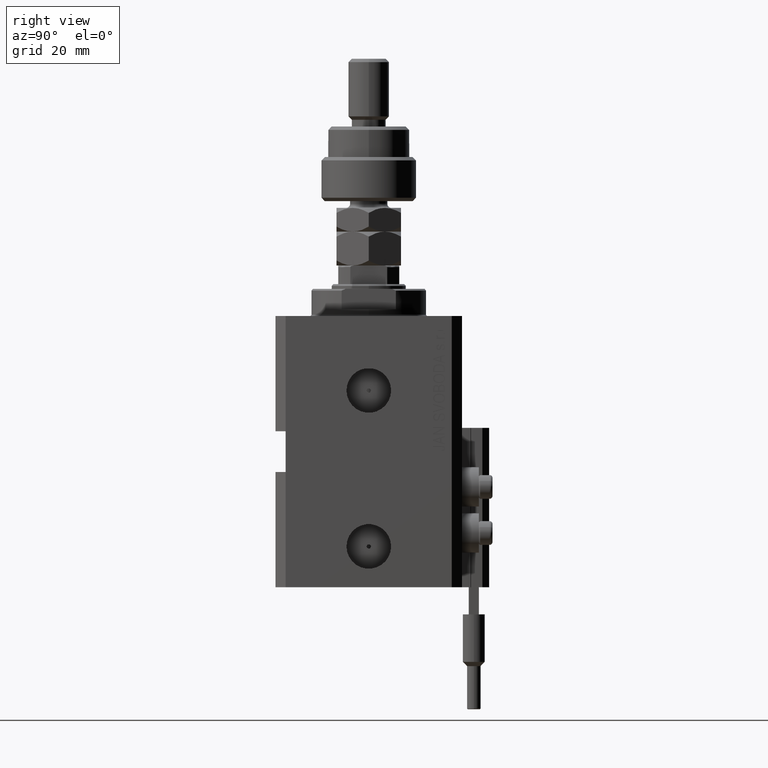
[diagram: clean part render]
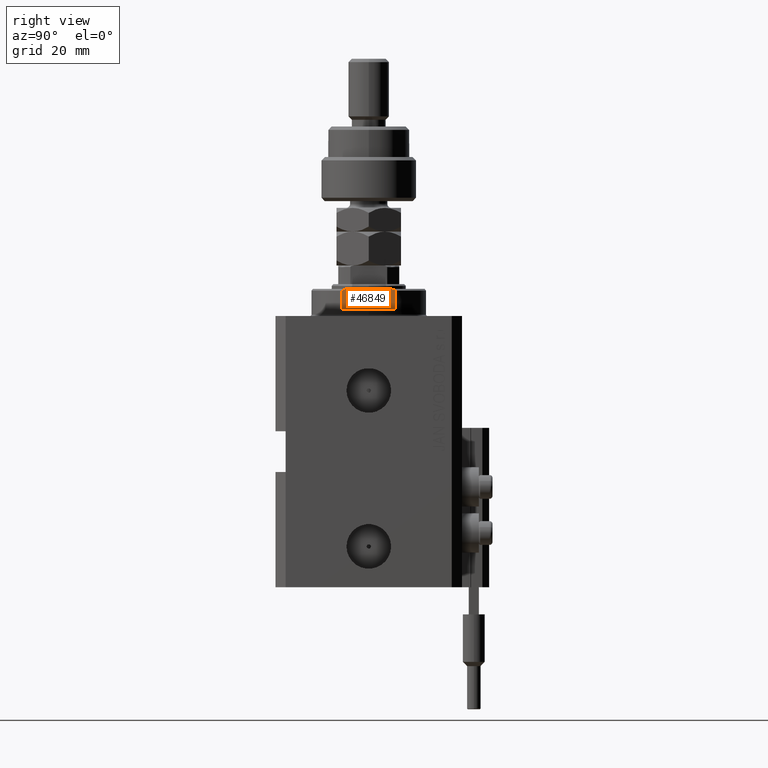
[diagram: same view with one face highlighted and labeled with its STEP entity id]
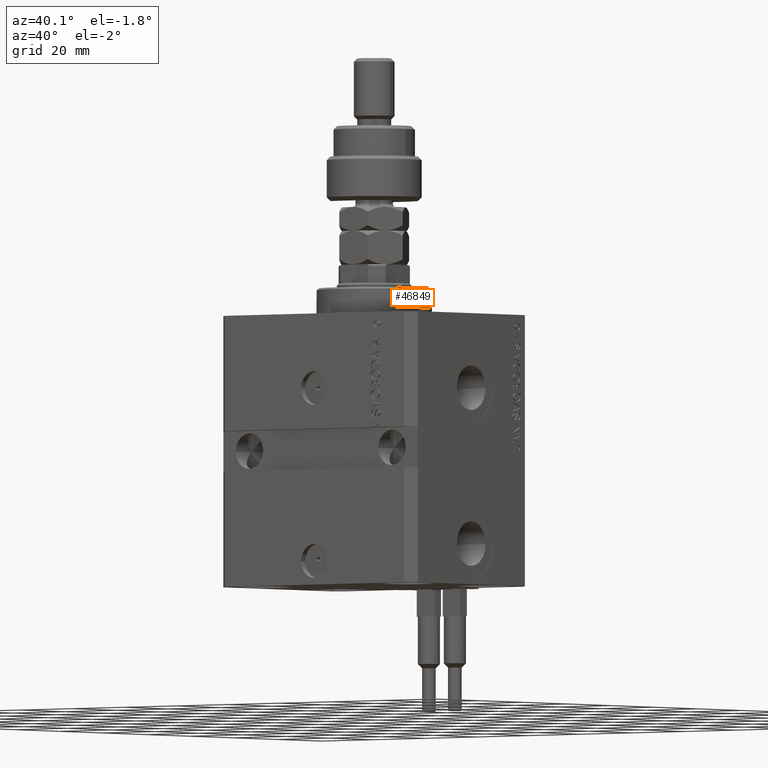
[diagram: same view with one face highlighted and labeled with its STEP entity id]
A machine part, right view. The second image highlights one B-rep face of the part: STEP entity #46849.
A second angle (auxiliary view) of the same face is appended — the face is thin or edge-on in the first view.
In plain terms, the highlighted planar face has unit normal (-1, 0, 0).
Its self-contained STEP definition (entity closure, byte-faithful):
#204 = CARTESIAN_POINT ( 'NONE',  ( -15.00000000000000000, -6.873863542433783280, -8.000000000000000000 ) ) ;
#3131 = CARTESIAN_POINT ( 'NONE',  ( -14.99999999999999645, -8.000000000000003553, -2.000000000000000000 ) ) ;
#3450 = CARTESIAN_POINT ( 'NONE',  ( -15.00000000000000000, 8.000000000000001776, -7.500000000000013323 ) ) ;
#4274 = CARTESIAN_POINT ( 'NONE',  ( -15.00000000000000000, -7.629305121525818301, -7.674444648693746984 ) ) ;
#4474 = CARTESIAN_POINT ( 'NONE',  ( -15.00000000000000000, -8.000000000000001776, -7.500000000000014211 ) ) ;
#5119 = CARTESIAN_POINT ( 'NONE',  ( -15.00000000000000000, -6.873863542433783280, -8.000000000000000000 ) ) ;
#5633 = CARTESIAN_POINT ( 'NONE',  ( -14.99999999999999645, 8.000000000000003553, -2.000000000000000000 ) ) ;
#6621 = DIRECTION ( 'NONE',  ( -0.000000000000000000, -1.000000000000000000, -0.000000000000000000 ) ) ;
#6642 = ORIENTED_EDGE ( 'NONE', *, *, #42068, .T. ) ;
#7696 = VERTEX_POINT ( 'NONE', #3450 ) ;
#7844 = DIRECTION ( 'NONE',  ( -0.000000000000000000, -0.000000000000000000, 1.000000000000000000 ) ) ;
#8090 = DIRECTION ( 'NONE',  ( 1.000000000000000000, 0.000000000000000000, 0.000000000000000000 ) ) ;
#8142 = ORIENTED_EDGE ( 'NONE', *, *, #33751, .T. ) ;
#9582 = EDGE_CURVE ( 'NONE', #23424, #41322, #39323, .T. ) ;
#11922 = FACE_OUTER_BOUND ( 'NONE', #21169, .T. ) ;
#12617 = LINE ( 'NONE', #24346, #18976 ) ;
#14037 = LINE ( 'NONE', #49010, #30436 ) ;
#14527 = EDGE_CURVE ( 'NONE', #7696, #42965, #12617, .T. ) ;
#14792 = ORIENTED_EDGE ( 'NONE', *, *, #14527, .F. ) ;
#17301 = CARTESIAN_POINT ( 'NONE',  ( -14.99999999999999645, 6.873863542433781504, -8.000000000000000000 ) ) ;
#18832 = LINE ( 'NONE', #46139, #29199 ) ;
#18976 = VECTOR ( 'NONE', #7844, 1000.000000000000000 ) ;
#20372 = CARTESIAN_POINT ( 'NONE',  ( -15.00000000000000000, 7.628315461082486593, -7.674910371255312391 ) ) ;
#20879 = CARTESIAN_POINT ( 'NONE',  ( -15.00000000000000000, 7.253126193285940104, -7.842000017654667587 ) ) ;
#21169 = EDGE_LOOP ( 'NONE', ( #6642, #8142, #23486, #42077, #38102, #14792 ) ) ;
#23424 = VERTEX_POINT ( 'NONE', #5119 ) ;
#23486 = ORIENTED_EDGE ( 'NONE', *, *, #9582, .T. ) ;
#24188 = CARTESIAN_POINT ( 'NONE',  ( -15.00000000000000000, 8.000000000000001776, -7.500000000000013323 ) ) ;
#24288 = B_SPLINE_CURVE_WITH_KNOTS ( 'NONE', 3,
 ( #24188, #20372, #20879, #17301 ),
 .UNSPECIFIED., .F., .F.,
 ( 4, 4 ),
 ( 0.03336039268697044147, 0.03459498301323848946 ),
 .UNSPECIFIED. ) ;
#24346 = CARTESIAN_POINT ( 'NONE',  ( -15.00000000000000000, 8.000000000000001776, -8.000000000000000000 ) ) ;
#26721 = AXIS2_PLACEMENT_3D ( 'NONE', #47390, #8090, #46638 ) ;
#29165 = VECTOR ( 'NONE', #47085, 1000.000000000000000 ) ;
#29199 = VECTOR ( 'NONE', #37486, 1000.000000000000000 ) ;
#30436 = VECTOR ( 'NONE', #6621, 1000.000000000000000 ) ;
#30947 = VERTEX_POINT ( 'NONE', #45764 ) ;
#31495 = LINE ( 'NONE', #46075, #29165 ) ;
#31806 = PLANE ( 'NONE',  #26721 ) ;
#33751 = EDGE_CURVE ( 'NONE', #30947, #23424, #14037, .T. ) ;
#37486 = DIRECTION ( 'NONE',  ( -0.000000000000000000, -1.000000000000000000, -0.000000000000000000 ) ) ;
#38102 = ORIENTED_EDGE ( 'NONE', *, *, #47641, .F. ) ;
#39323 = B_SPLINE_CURVE_WITH_KNOTS ( 'NONE', 3,
 ( #204, #42345, #4274, #46664 ),
 .UNSPECIFIED., .F., .F.,
 ( 4, 4 ),
 ( 0.04875332532859062012, 0.04998905627745663799 ),
 .UNSPECIFIED. ) ;
#41322 = VERTEX_POINT ( 'NONE', #4474 ) ;
#42068 = EDGE_CURVE ( 'NONE', #7696, #30947, #24288, .T. ) ;
#42077 = ORIENTED_EDGE ( 'NONE', *, *, #47134, .F. ) ;
#42345 = CARTESIAN_POINT ( 'NONE',  ( -15.00000000000000000, -7.254193676168139149, -7.841555306644512058 ) ) ;
#42965 = VERTEX_POINT ( 'NONE', #5633 ) ;
#45764 = CARTESIAN_POINT ( 'NONE',  ( -14.99999999999999645, 6.873863542433781504, -8.000000000000000000 ) ) ;
#46075 = CARTESIAN_POINT ( 'NONE',  ( -15.00000000000000000, -8.000000000000001776, -8.000000000000000000 ) ) ;
#46139 = CARTESIAN_POINT ( 'NONE',  ( -15.00000000000000000, -42.42640687119285303, -2.000000000000000000 ) ) ;
#46638 = DIRECTION ( 'NONE',  ( 0.000000000000000000, 0.000000000000000000, -1.000000000000000000 ) ) ;
#46664 = CARTESIAN_POINT ( 'NONE',  ( -15.00000000000000000, -8.000000000000001776, -7.500000000000014211 ) ) ;
#46849 = ADVANCED_FACE ( 'NONE', ( #11922 ), #31806, .F. ) ;
#47085 = DIRECTION ( 'NONE',  ( 0.000000000000000000, 0.000000000000000000, -1.000000000000000000 ) ) ;
#47134 = EDGE_CURVE ( 'NONE', #48154, #41322, #31495, .T. ) ;
#47390 = CARTESIAN_POINT ( 'NONE',  ( -15.00000000000000000, -42.42640687119285303, -2.000000000000000000 ) ) ;
#47641 = EDGE_CURVE ( 'NONE', #42965, #48154, #18832, .T. ) ;
#48154 = VERTEX_POINT ( 'NONE', #3131 ) ;
#49010 = CARTESIAN_POINT ( 'NONE',  ( -15.00000000000000000, -42.42640687119285303, -8.000000000000000000 ) ) ;